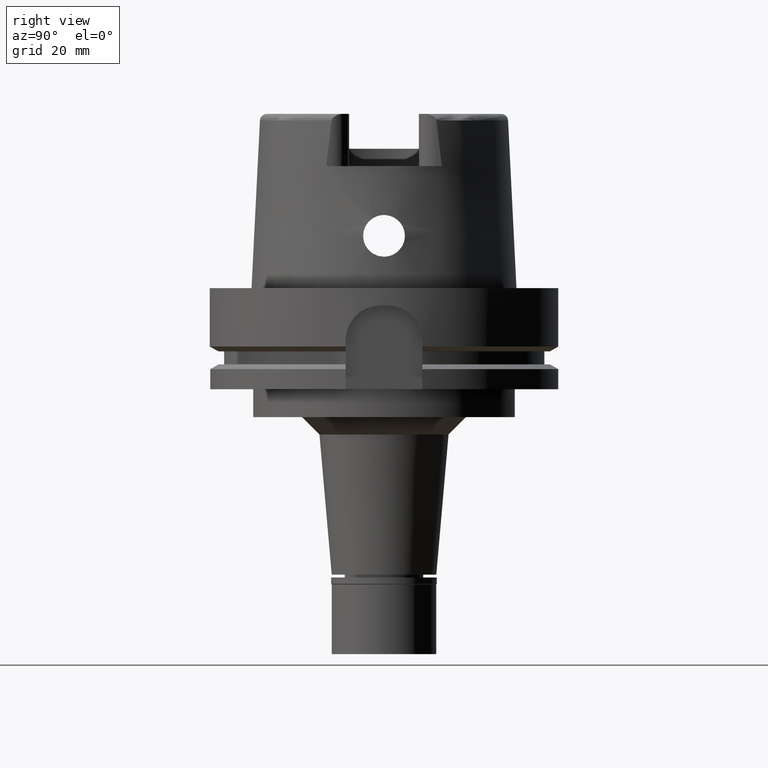
[diagram: clean part render]
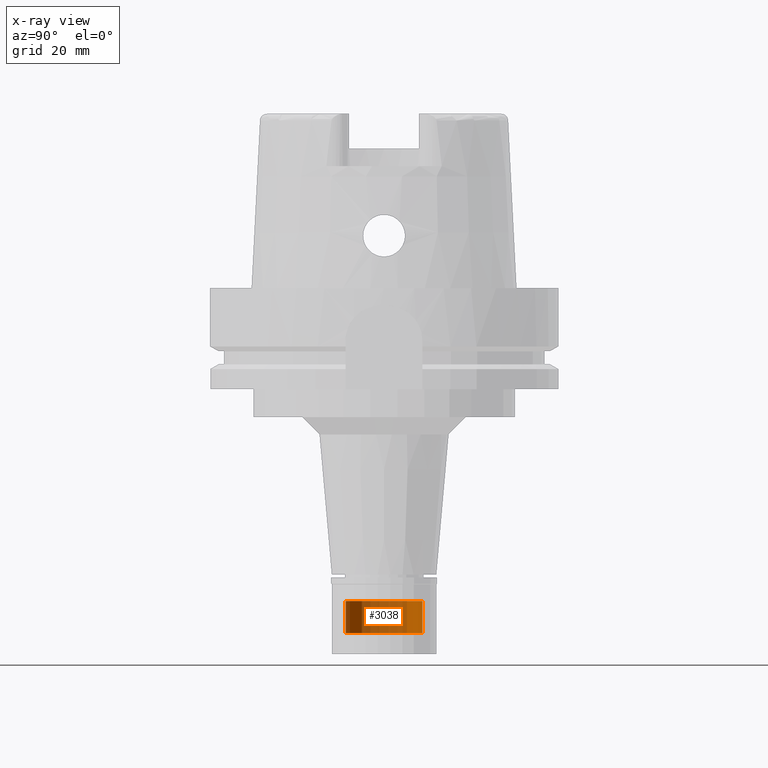
[diagram: x-ray — body ghosted, one internal face saturated and labeled with its STEP entity id]
A machine part, right view, then the same camera in x-ray: the body is ghosted and one INTERNAL B-rep face — a face not visible from any outside direction — is saturated and labeled: STEP entity #3038.
In plain terms, the highlighted cylindrical surface (partial cylindrical patch) has radius 11 mm, axis along (0, 0, -1).
Its self-contained STEP definition (entity closure, byte-faithful):
#238 = LINE ( 'NONE', #3113, #3670 ) ;
#459 = ORIENTED_EDGE ( 'NONE', *, *, #4333, .T. ) ;
#841 = DIRECTION ( 'NONE',  ( 0.0000000000000000000, 0.0000000000000000000, -1.000000000000000000 ) ) ;
#1134 = CIRCLE ( 'NONE', #1231, 11.00000000000000000 ) ;
#1231 = AXIS2_PLACEMENT_3D ( 'NONE', #4521, #2297, #3152 ) ;
#1238 = ORIENTED_EDGE ( 'NONE', *, *, #2724, .T. ) ;
#1363 = CARTESIAN_POINT ( 'NONE',  ( 0.0000000000000000000, 0.0000000000000000000, 0.0000000000000000000 ) ) ;
#1705 = CYLINDRICAL_SURFACE ( 'NONE', #1952, 11.00000000000000000 ) ;
#1952 = AXIS2_PLACEMENT_3D ( 'NONE', #1363, #2160, #5124 ) ;
#2129 = FACE_OUTER_BOUND ( 'NONE', #3659, .T. ) ;
#2140 = DIRECTION ( 'NONE',  ( 0.0000000000000000000, -1.000000000000000000, 0.0000000000000000000 ) ) ;
#2160 = DIRECTION ( 'NONE',  ( 0.0000000000000000000, 0.0000000000000000000, -1.000000000000000000 ) ) ;
#2229 = VECTOR ( 'NONE', #4086, 1000.000000000000000 ) ;
#2297 = DIRECTION ( 'NONE',  ( 0.0000000000000000000, 0.0000000000000000000, 1.000000000000000000 ) ) ;
#2372 = CARTESIAN_POINT ( 'NONE',  ( 0.0000000000000000000, 11.00000000000000000, -16.00000000000000000 ) ) ;
#2565 = ORIENTED_EDGE ( 'NONE', *, *, #3210, .T. ) ;
#2724 = EDGE_CURVE ( 'NONE', #4469, #4236, #1134, .T. ) ;
#3038 = ADVANCED_FACE ( 'NONE', ( #2129 ), #1705, .F. ) ;
#3113 = CARTESIAN_POINT ( 'NONE',  ( 0.0000000000000000000, -11.00000000000000000, -16.00000000000000000 ) ) ;
#3152 = DIRECTION ( 'NONE',  ( 0.0000000000000000000, 1.000000000000000000, 0.0000000000000000000 ) ) ;
#3210 = EDGE_CURVE ( 'NONE', #3407, #4469, #4900, .T. ) ;
#3407 = VERTEX_POINT ( 'NONE', #3840 ) ;
#3437 = CARTESIAN_POINT ( 'NONE',  ( 0.0000000000000000000, 0.0000000000000000000, -16.00000000000000000 ) ) ;
#3659 = EDGE_LOOP ( 'NONE', ( #1238, #5222, #459, #2565 ) ) ;
#3670 = VECTOR ( 'NONE', #5255, 1000.000000000000000 ) ;
#3840 = CARTESIAN_POINT ( 'NONE',  ( 0.0000000000000000000, 11.00000000000000000, -16.00000000000000000 ) ) ;
#3856 = AXIS2_PLACEMENT_3D ( 'NONE', #3437, #841, #2140 ) ;
#3893 = CARTESIAN_POINT ( 'NONE',  ( 0.0000000000000000000, -11.00000000000000000, -16.00000000000000000 ) ) ;
#3983 = VERTEX_POINT ( 'NONE', #3893 ) ;
#4086 = DIRECTION ( 'NONE',  ( 0.0000000000000000000, 0.0000000000000000000, 1.000000000000000000 ) ) ;
#4236 = VERTEX_POINT ( 'NONE', #5352 ) ;
#4322 = CARTESIAN_POINT ( 'NONE',  ( 0.0000000000000000000, 11.00000000000000000, -6.799999999999999822 ) ) ;
#4333 = EDGE_CURVE ( 'NONE', #3983, #3407, #4570, .T. ) ;
#4469 = VERTEX_POINT ( 'NONE', #4322 ) ;
#4521 = CARTESIAN_POINT ( 'NONE',  ( 0.0000000000000000000, 0.0000000000000000000, -6.799999999999999822 ) ) ;
#4570 = CIRCLE ( 'NONE', #3856, 11.00000000000000000 ) ;
#4680 = EDGE_CURVE ( 'NONE', #3983, #4236, #238, .T. ) ;
#4900 = LINE ( 'NONE', #2372, #2229 ) ;
#5124 = DIRECTION ( 'NONE',  ( 0.0000000000000000000, -1.000000000000000000, 0.0000000000000000000 ) ) ;
#5222 = ORIENTED_EDGE ( 'NONE', *, *, #4680, .F. ) ;
#5255 = DIRECTION ( 'NONE',  ( 0.0000000000000000000, 0.0000000000000000000, 1.000000000000000000 ) ) ;
#5352 = CARTESIAN_POINT ( 'NONE',  ( 0.0000000000000000000, -11.00000000000000000, -6.799999999999999822 ) ) ;